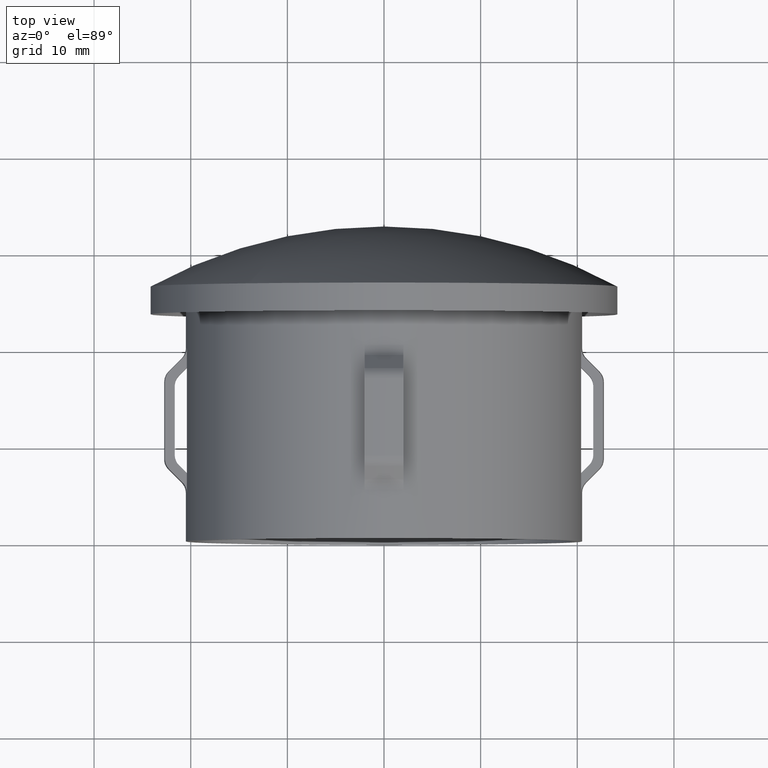
[diagram: clean part render]
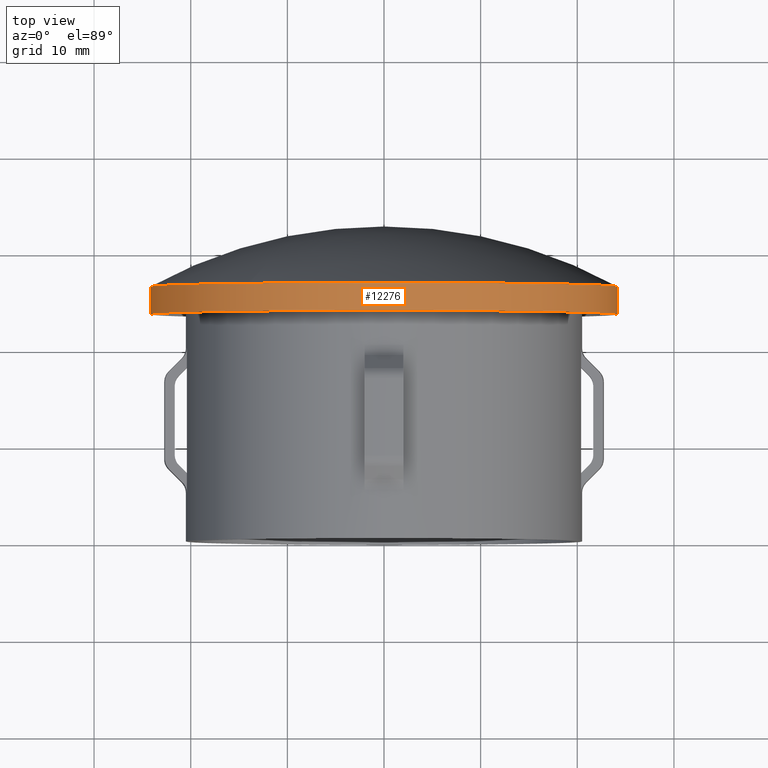
[diagram: same view with one face highlighted and labeled with its STEP entity id]
A machine part, top view. The second image highlights one B-rep face of the part: STEP entity #12276.
In plain terms, the highlighted cylindrical surface (partial cylindrical patch) has radius 24.15 mm, axis along (-0, -1, -0).
Its self-contained STEP definition (entity closure, byte-faithful):
#305 = FACE_OUTER_BOUND ( 'NONE', #10055, .T. ) ;
#1204 = EDGE_CURVE ( 'NONE', #11715, #9534, #12204, .T. ) ;
#1346 = DIRECTION ( 'NONE',  ( 1.000000000000000000, -2.873247993336324600E-015, 0.0000000000000000000 ) ) ;
#1814 = DIRECTION ( 'NONE',  ( 1.000000000000000000, -2.873247993336325000E-015, 0.0000000000000000000 ) ) ;
#1848 = EDGE_CURVE ( 'NONE', #2216, #9401, #5925, .T. ) ;
#1859 = DIRECTION ( 'NONE',  ( -2.904862207577519400E-015, -1.000000000000000000, -0.0000000000000000000 ) ) ;
#2216 = VERTEX_POINT ( 'NONE', #9859 ) ;
#3746 = DIRECTION ( 'NONE',  ( 1.000000000000000000, -2.873247993336324200E-015, 0.0000000000000000000 ) ) ;
#4072 = CIRCLE ( 'NONE', #4671, 24.15000000000002000 ) ;
#4671 = AXIS2_PLACEMENT_3D ( 'NONE', #5996, #8329, #3746 ) ;
#4761 = CARTESIAN_POINT ( 'NONE',  ( 0.0000000000000000000, 30.10000000000000100, 0.0000000000000000000 ) ) ;
#4911 = CARTESIAN_POINT ( 'NONE',  ( 24.15000000000001600, 30.09999999999993400, 0.0000000000000000000 ) ) ;
#5925 = LINE ( 'NONE', #11266, #14171 ) ;
#5996 = CARTESIAN_POINT ( 'NONE',  ( -1.916436701262193500E-014, 23.50265883778223500, 0.0000000000000000000 ) ) ;
#6034 = EDGE_CURVE ( 'NONE', #11715, #2216, #7324, .T. ) ;
#6537 = CARTESIAN_POINT ( 'NONE',  ( -24.14999999999991300, 23.50265883778230600, 2.957522019940861500E-015 ) ) ;
#6983 = ORIENTED_EDGE ( 'NONE', *, *, #11106, .F. ) ;
#7248 = CARTESIAN_POINT ( 'NONE',  ( 24.15000000000000600, 23.50265883778216700, 0.0000000000000000000 ) ) ;
#7324 = CIRCLE ( 'NONE', #11916, 24.15000000000001300 ) ;
#7372 = CARTESIAN_POINT ( 'NONE',  ( 24.15000000000000200, 26.38101757611396900, 0.0000000000000000000 ) ) ;
#7492 = CYLINDRICAL_SURFACE ( 'NONE', #10443, 24.15000000000001600 ) ;
#8150 = DIRECTION ( 'NONE',  ( -2.904862207577519400E-015, -1.000000000000000000, -0.0000000000000000000 ) ) ;
#8329 = DIRECTION ( 'NONE',  ( -2.904862207577519400E-015, -1.000000000000000000, -0.0000000000000000000 ) ) ;
#8863 = CARTESIAN_POINT ( 'NONE',  ( -1.080313149379137300E-014, 26.38101757611403600, 0.0000000000000000000 ) ) ;
#9401 = VERTEX_POINT ( 'NONE', #6537 ) ;
#9506 = ORIENTED_EDGE ( 'NONE', *, *, #6034, .T. ) ;
#9534 = VERTEX_POINT ( 'NONE', #7248 ) ;
#9859 = CARTESIAN_POINT ( 'NONE',  ( -24.14999999999989200, 26.38101757611410700, 2.957522019940859500E-015 ) ) ;
#10055 = EDGE_LOOP ( 'NONE', ( #9506, #11192, #6983, #13869 ) ) ;
#10235 = VECTOR ( 'NONE', #11049, 1000.000000000000000 ) ;
#10443 = AXIS2_PLACEMENT_3D ( 'NONE', #4761, #8150, #1346 ) ;
#11049 = DIRECTION ( 'NONE',  ( -2.904862207577519400E-015, -1.000000000000000000, -0.0000000000000000000 ) ) ;
#11106 = EDGE_CURVE ( 'NONE', #9534, #9401, #4072, .T. ) ;
#11192 = ORIENTED_EDGE ( 'NONE', *, *, #1848, .T. ) ;
#11266 = CARTESIAN_POINT ( 'NONE',  ( -24.15000000000001600, 30.10000000000007200, 2.957522019940859900E-015 ) ) ;
#11715 = VERTEX_POINT ( 'NONE', #7372 ) ;
#11916 = AXIS2_PLACEMENT_3D ( 'NONE', #8863, #1859, #1814 ) ;
#12204 = LINE ( 'NONE', #4911, #10235 ) ;
#12276 = ADVANCED_FACE ( 'NONE', ( #305 ), #7492, .T. ) ;
#13869 = ORIENTED_EDGE ( 'NONE', *, *, #1204, .F. ) ;
#14171 = VECTOR ( 'NONE', #14649, 1000.000000000000000 ) ;
#14649 = DIRECTION ( 'NONE',  ( -2.904862207577519400E-015, -1.000000000000000000, -0.0000000000000000000 ) ) ;